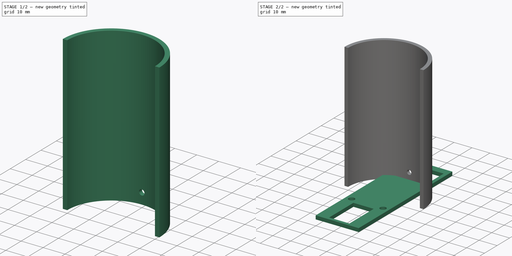
[diagram: build sequence overview — one tinted view per stage of 2, left to right]
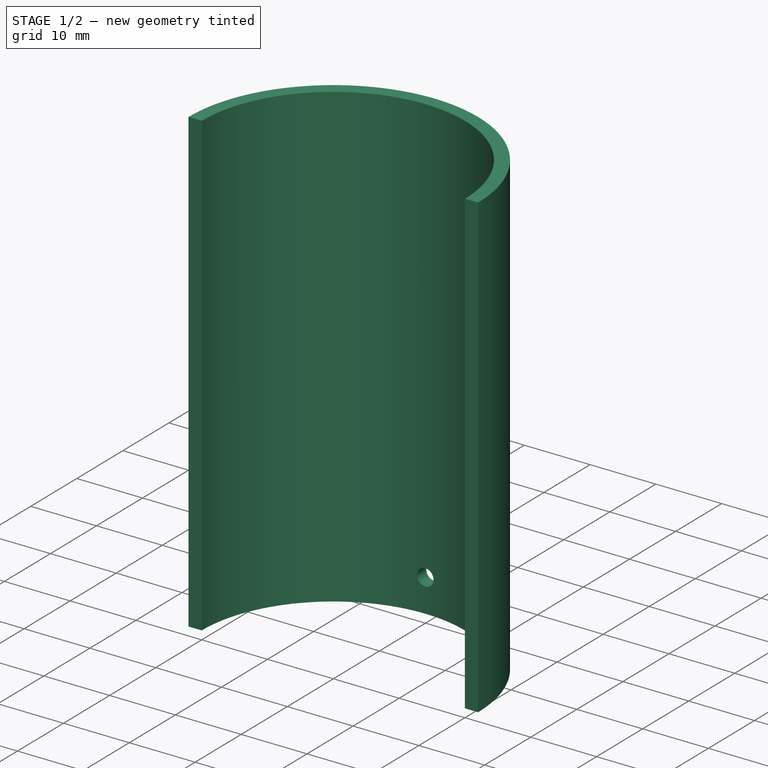
[diagram: stage 1 of 2 — iso view after this stage's code; geometry added in this stage tinted green]
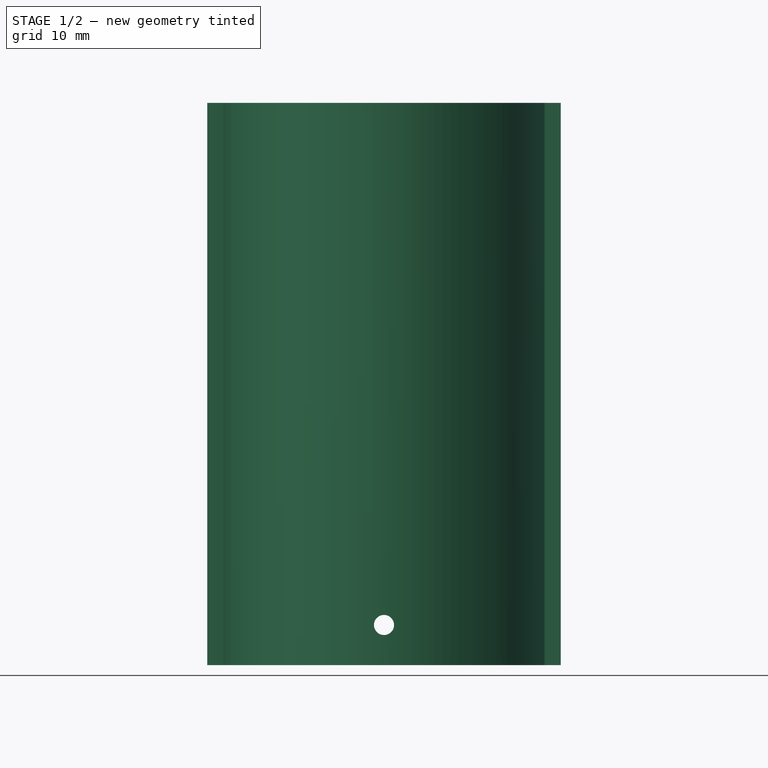
[diagram: stage 1 of 2 — front view after this stage's code; geometry added in this stage tinted green]
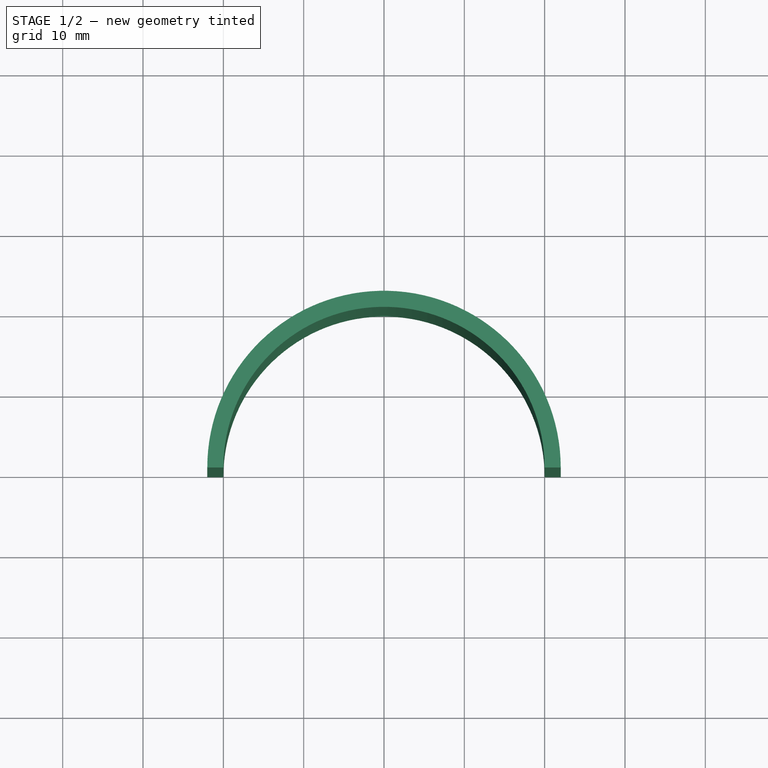
[diagram: stage 1 of 2 — top view after this stage's code; geometry added in this stage tinted green]
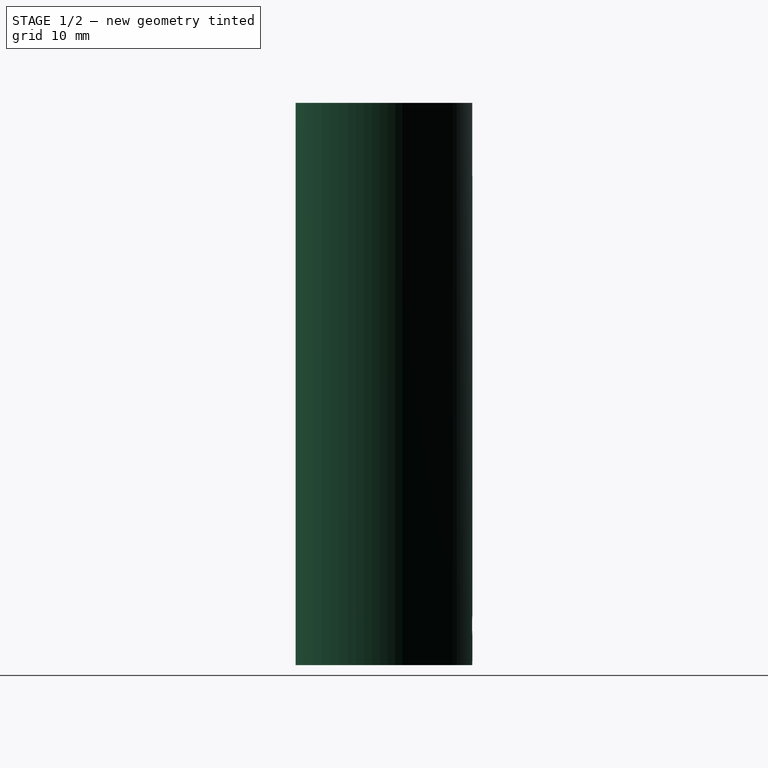
[diagram: stage 1 of 2 — right view after this stage's code; geometry added in this stage tinted green]
FCSTD DOCUMENT  (FreeCAD 0.18.4R)
Label: enclosure
License: All rights reserved
LicenseURL: http://en.wikipedia.org/wiki/All_rights_reserved
objects: Sketcher::SketchObject×3, PartDesign::Pad×2, PartDesign::Body×2, PartDesign::Pocket×1
note: 11 computed .brp shape members not serialized (recipe doc carries the construction recipe); baked Part::Feature solids carry a one-line shape summary decoded from their .brp

FEATURE [PartDesign::Body] Body  label="switchport"
  Group = -> [Sketch,Pad]
  Origin = -> Origin
  Tip = -> Pad
FEATURE [Sketcher::SketchObject] Sketch001
  MapMode = 5
  Support = -> [XY_Plane001]
  sketch-geometry (4):
    g0: ArcOfCircle CenterX=0 CenterY=0 CenterZ=0 NormalX=0 NormalY=0 NormalZ=1 AngleXU=0 Radius=20 StartAngle=0 EndAngle=3.14159
    g1: ArcOfCircle CenterX=0 CenterY=0 CenterZ=0 NormalX=0 NormalY=0 NormalZ=1 AngleXU=0 Radius=22 StartAngle=0 EndAngle=3.14159
    g2: LineSegment StartX=-22 StartY=1.297e-13 StartZ=0 EndX=-20 EndY=2.4e-15 EndZ=0
    g3: LineSegment StartX=20 StartY=0 StartZ=0 EndX=22 EndY=5e-16 EndZ=0
  constraints (12):
    c: Coincident(g0,g-1)
    c: PointOnObject(g0,g-1)
    c: PointOnObject(g0,g-1)
    c: Diameter(g0) = 40
    c: Coincident(g1,g0)
    c: PointOnObject(g1,g-1)
    c: PointOnObject(g1,g-1)
    c: Diameter(g1) = 44
    c: Coincident(g2,g1)
    c: Coincident(g2,g0)
    c: Coincident(g3,g0)
    c: Coincident(g3,g1)
FEATURE [PartDesign::Pad] Pad001
  Length = 70
  Length2 = 100
  Profile = -> Sketch001
  Type = 0
FEATURE [Sketcher::SketchObject] Sketch002
  MapMode = 5
  Placement = pos=(0,0,0) rot=(1,0,0;1.5708rad)
  Support = -> [XZ_Plane001]
  sketch-geometry (1):
    g0: Circle CenterX=0 CenterY=5 CenterZ=0 NormalX=0 NormalY=0 NormalZ=1 AngleXU=0 Radius=1.25
  constraints (3):
    c: PointOnObject(g0,g-2)
    c: DistanceY(g-1,g0) = 5
    c: Diameter(g0) = 2.5
FEATURE [PartDesign::Pocket] Pocket
  BaseFeature = -> Pad001
  Length = 5
  Length2 = 100
  Profile = -> Sketch002
  Type = 1
FEATURE [PartDesign::Body] Body001  label="elect-cover"
  Group = -> [Sketch001,Pad001,Sketch002,Pocket]
  Origin = -> Origin001
  Tip = -> Pocket
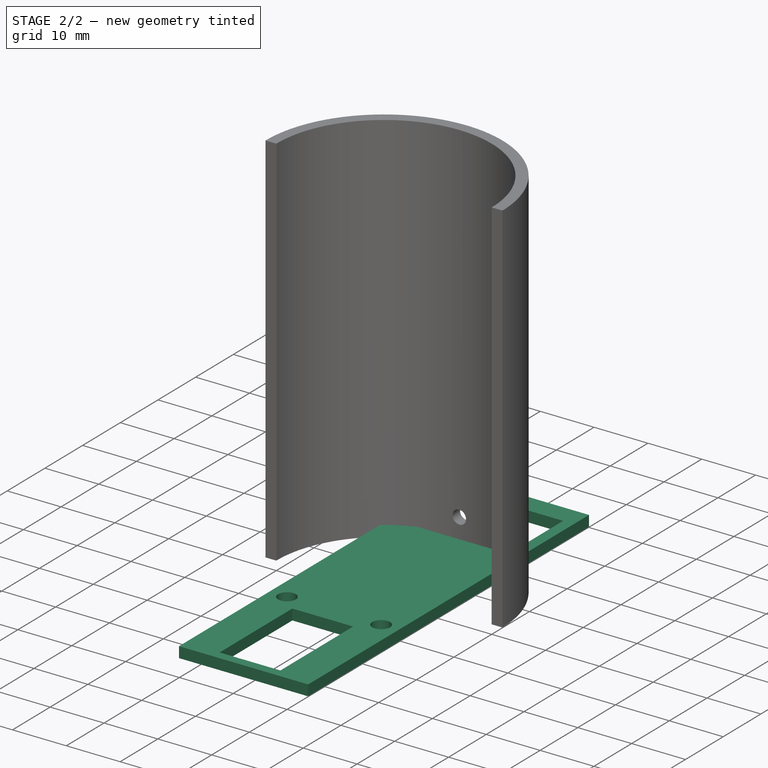
[diagram: stage 2 of 2 — iso view after this stage's code; geometry added in this stage tinted green]
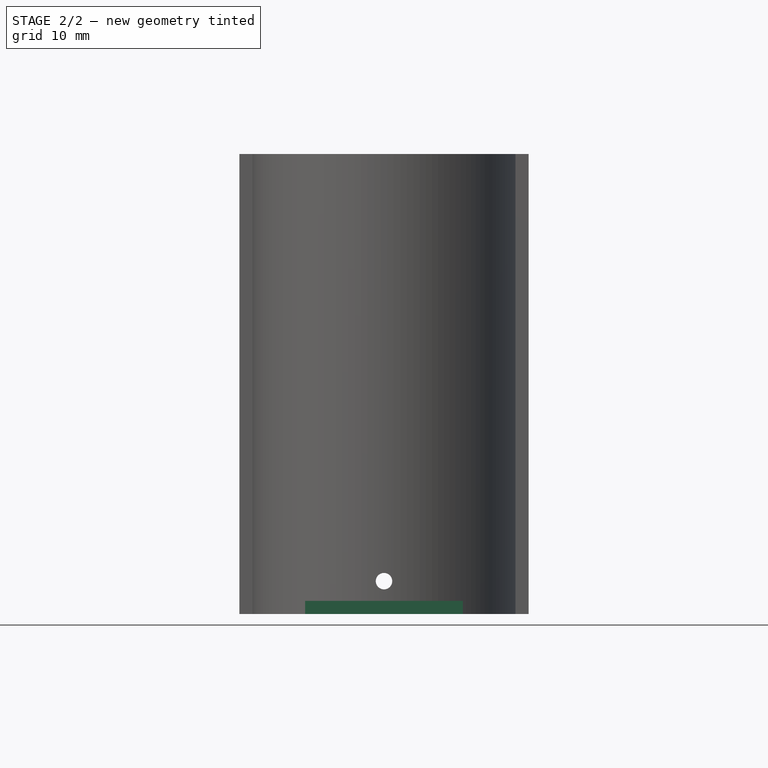
[diagram: stage 2 of 2 — front view after this stage's code; geometry added in this stage tinted green]
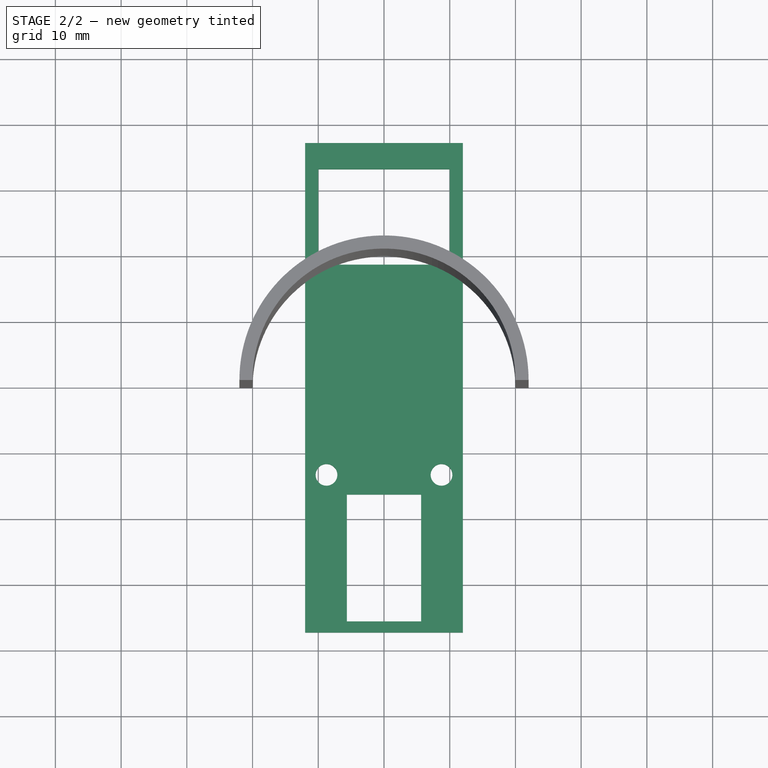
[diagram: stage 2 of 2 — top view after this stage's code; geometry added in this stage tinted green]
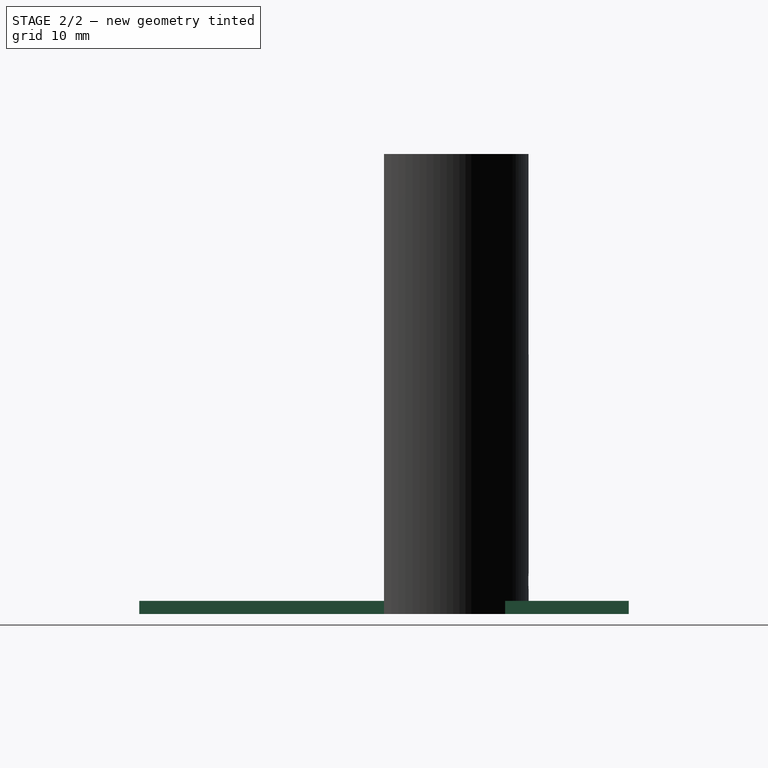
[diagram: stage 2 of 2 — right view after this stage's code; geometry added in this stage tinted green]
FEATURE [Sketcher::SketchObject] Sketch
  MapMode = 5
  Support = -> [XY_Plane]
  sketch-geometry (18):
    g0: LineSegment StartX=-12 StartY=37.25 StartZ=0 EndX=12 EndY=37.25 EndZ=0
    g1: LineSegment StartX=12 StartY=37.25 StartZ=0 EndX=12 EndY=-37.25 EndZ=0
    g2: LineSegment StartX=12 StartY=-37.25 StartZ=0 EndX=-12 EndY=-37.25 EndZ=0
    g3: LineSegment StartX=-12 StartY=-37.25 StartZ=0 EndX=-12 EndY=37.25 EndZ=0
    g4: Circle CenterX=-8.75 CenterY=-13.25 CenterZ=0 NormalX=0 NormalY=0 NormalZ=1 AngleXU=0 Radius=1.65
    g5: Circle CenterX=8.75 CenterY=-13.25 CenterZ=0 NormalX=0 NormalY=0 NormalZ=1 AngleXU=0 Radius=1.65
    g6: LineSegment [constr] StartX=-3 StartY=-22.25 StartZ=0 EndX=3 EndY=-22.25 EndZ=0
    g7: LineSegment [constr] StartX=3 StartY=-22.25 StartZ=0 EndX=3 EndY=-26.25 EndZ=0
    g8: LineSegment [constr] StartX=3 StartY=-26.25 StartZ=0 EndX=-3 EndY=-26.25 EndZ=0
    g9: LineSegment [constr] StartX=-3 StartY=-26.25 StartZ=0 EndX=-3 EndY=-22.25 EndZ=0
    g10: LineSegment StartX=-10 StartY=18.75 StartZ=0 EndX=10 EndY=18.75 EndZ=0
    g11: LineSegment StartX=10 StartY=18.75 StartZ=0 EndX=10 EndY=33.25 EndZ=0
    g12: LineSegment StartX=10 StartY=33.25 StartZ=0 EndX=-10 EndY=33.25 EndZ=0
    g13: LineSegment StartX=-10 StartY=33.25 StartZ=0 EndX=-10 EndY=18.75 EndZ=0
    g14: LineSegment StartX=-5.65 StartY=-16.25 StartZ=0 EndX=5.65 EndY=-16.25 EndZ=0
    g15: LineSegment StartX=5.65 StartY=-16.25 StartZ=0 EndX=5.65 EndY=-35.55 EndZ=0
    g16: LineSegment StartX=5.65 StartY=-35.55 StartZ=0 EndX=-5.65 EndY=-35.55 EndZ=0
    g17: LineSegment StartX=-5.65 StartY=-35.55 StartZ=0 EndX=-5.65 EndY=-16.25 EndZ=0
  constraints (48):
    c: Coincident(g0,g1)
    c: Coincident(g1,g2)
    c: Coincident(g2,g3)
    c: Coincident(g3,g0)
    c: Horizontal(g0)
    c: Vertical(g1)
    c: Symmetric(g1,g2,g-2)
    c: Symmetric(g0,g2,g-1)
    c: DistanceX(g0,g0) = 24
    c: Symmetric(g4,g5,g-2)
    c: Diameter(g5) = 3.3
    c: Equal(g5,g4)
    c: DistanceX(g4,g5) = 17.5
    c: Coincident(g6,g7)
    c: Coincident(g7,g8)
    c: Coincident(g8,g9)
    c: Coincident(g9,g6)
    c: Horizontal(g8)
    c: Vertical(g7)
    c: Vertical(g9)
    c: Symmetric(g6,g6,g-2)
    c: DistanceY(g6,g5) = 9
    c: DistanceY(g7,g7) = 4
    c: DistanceX(g6,g6) = 6
    c: Coincident(g10,g11)
    c: Coincident(g11,g12)
    c: Coincident(g12,g13)
    c: Coincident(g13,g10)
    c: Horizontal(g12)
    c: Vertical(g11)
    c: Vertical(g13)
    c: Symmetric(g10,g10,g-2)
    c: DistanceY(g5,g10) = 32
    c: DistanceY(g11,g0) = 4
    c: DistanceY(g11,g11) = 14.5
    c: DistanceX(g10,g10) = 20
    c: Coincident(g14,g15)
    c: Coincident(g15,g16)
    c: Coincident(g16,g17)
    c: Coincident(g17,g14)
    c: Horizontal(g16)
    c: Vertical(g15)
    c: Vertical(g17)
    c: Symmetric(g14,g14,g-2)
    c: DistanceX(g16,g16) = 11.3
    c: DistanceY(g15,g15) = 19.3
    c: DistanceY(g6,g14) = 6
    c: DistanceY(g1,g15) = 1.7
FEATURE [PartDesign::Pad] Pad
  Length = 2
  Length2 = 100
  Profile = -> Sketch
  Type = 0
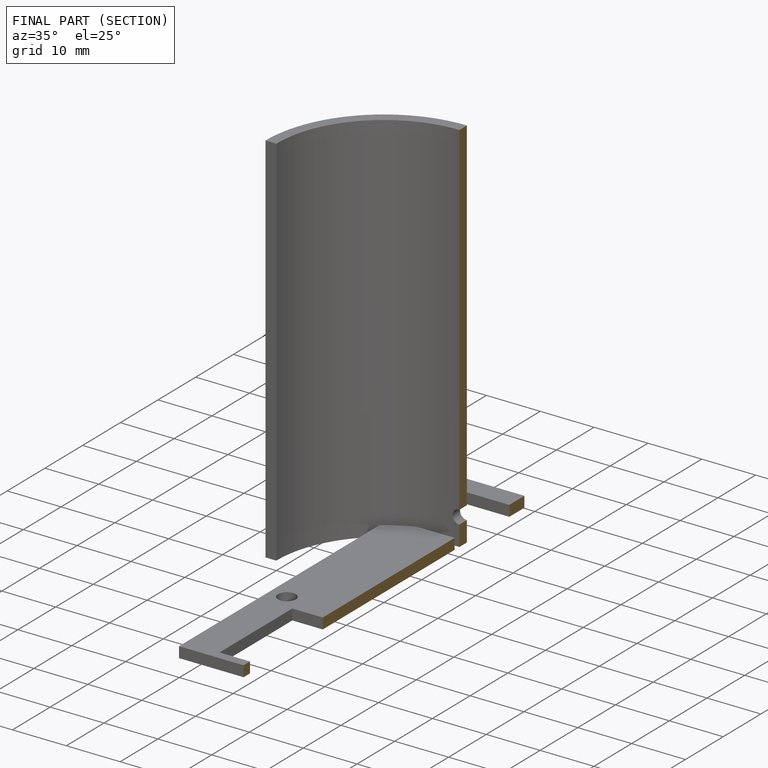
[diagram: finished part — half-section view (interior)]
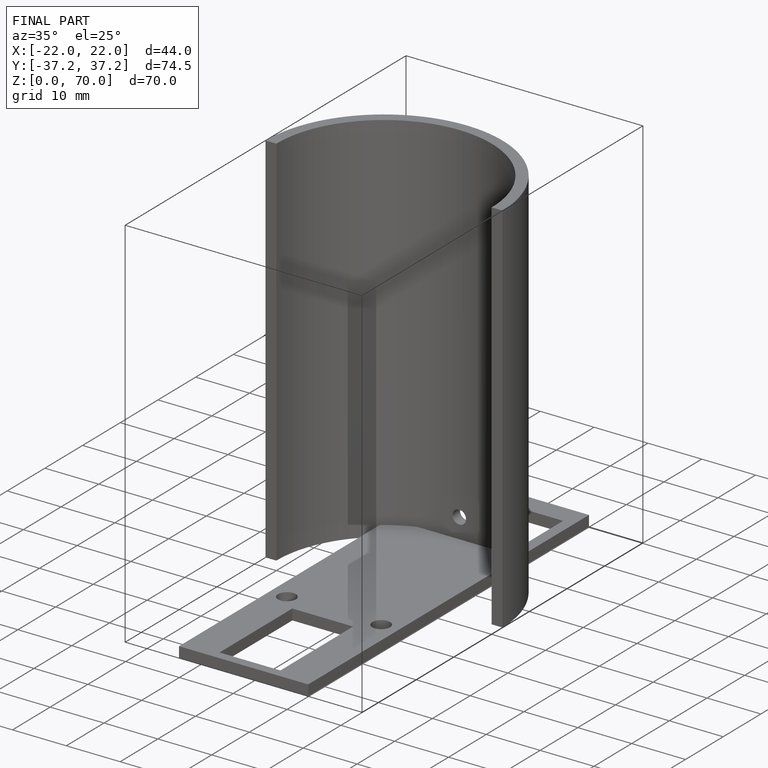
[diagram: finished part — iso view with bounding-box wireframe]
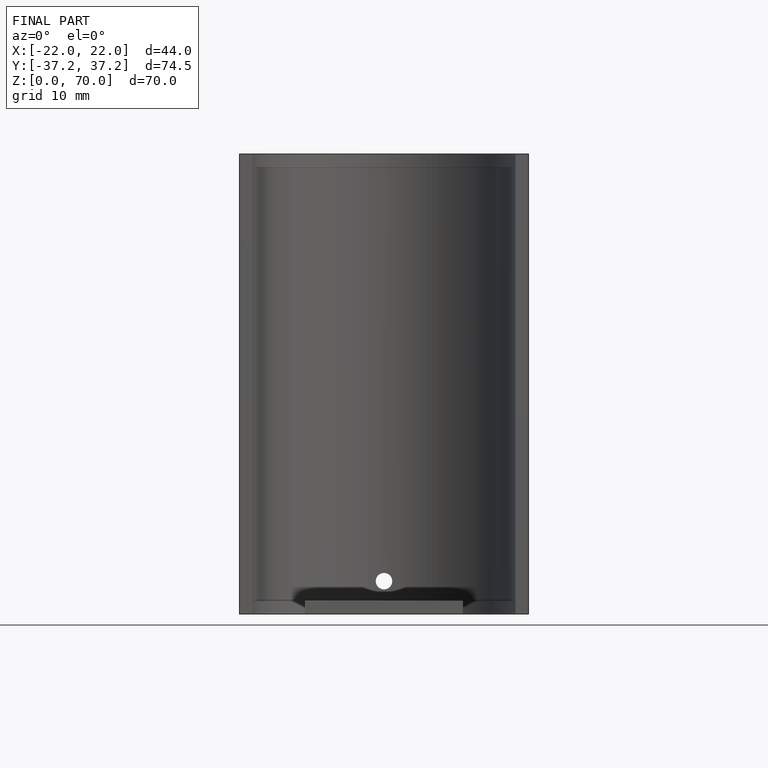
[diagram: finished part — front view with bounding-box wireframe]
